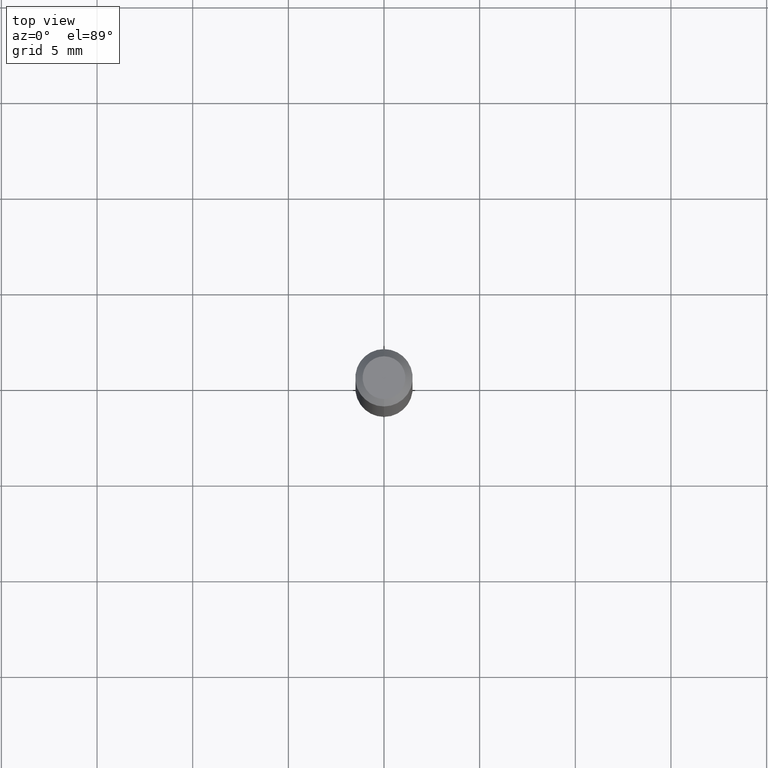
[diagram: clean part render]
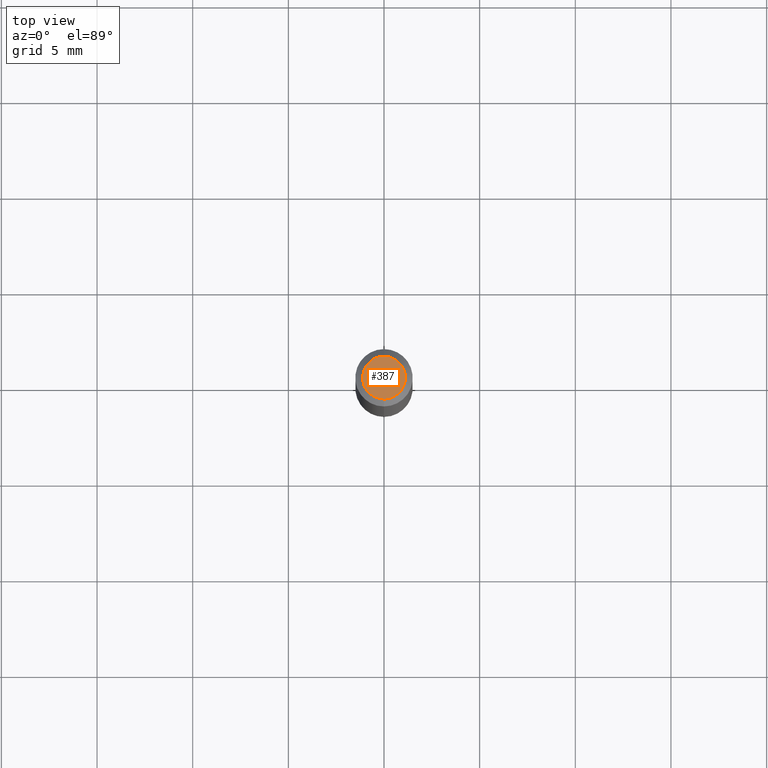
[diagram: same view with one face highlighted and labeled with its STEP entity id]
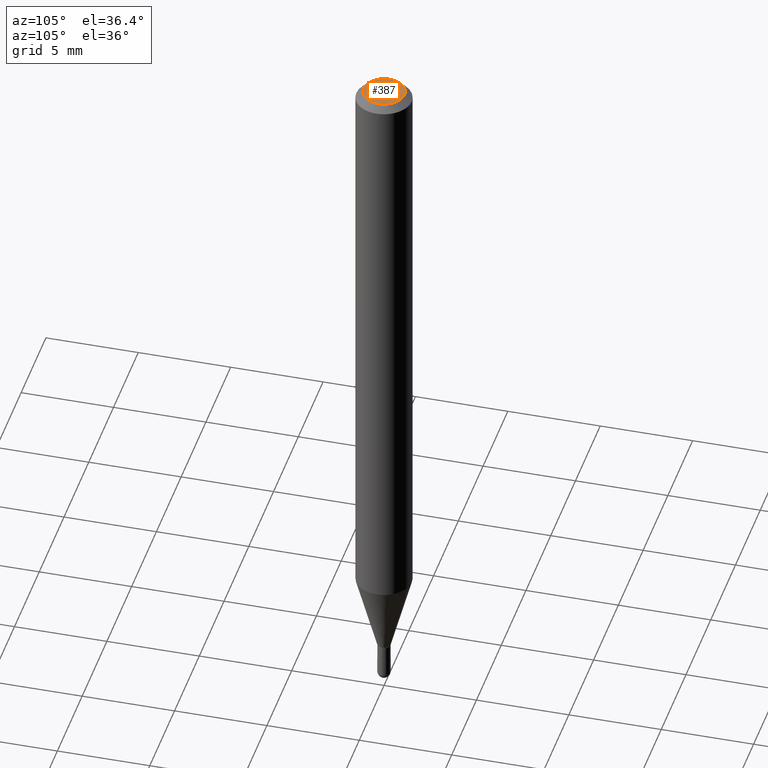
[diagram: same view with one face highlighted and labeled with its STEP entity id]
A machine part, top view. The second image highlights one B-rep face of the part: STEP entity #387.
A second angle (auxiliary view) of the same face is appended — the face is thin or edge-on in the first view.
In plain terms, the highlighted planar face has unit normal (0, -0, -1).
Its self-contained STEP definition (entity closure, byte-faithful):
#16 = CARTESIAN_POINT ( 'NONE',  ( 1.968650324445262626E-45, -2.810715645155272139E-31, -8.050202778374932957E-17 ) ) ;
#64 = CARTESIAN_POINT ( 'NONE',  ( 1.968650324445262626E-45, -2.810715645155272139E-31, -8.050202778374932957E-17 ) ) ;
#75 = VERTEX_POINT ( 'NONE', #115 ) ;
#76 = VERTEX_POINT ( 'NONE', #433 ) ;
#98 = EDGE_LOOP ( 'NONE', ( #313, #156 ) ) ;
#113 = CIRCLE ( 'NONE', #352, 0.04404999999999999888 ) ;
#115 = CARTESIAN_POINT ( 'NONE',  ( 3.599717260347271507E-16, 0.04404999999999999888, -2.343019103179918348E-16 ) ) ;
#156 = ORIENTED_EDGE ( 'NONE', *, *, #504, .T. ) ;
#178 = DIRECTION ( 'NONE',  ( 2.445466752382437471E-29, -3.491484280005505565E-15, -1.000000000000000000 ) ) ;
#289 = DIRECTION ( 'NONE',  ( -6.982962677686265133E-15, -1.000000000000000000, 3.491484280005504776E-15 ) ) ;
#291 = DIRECTION ( 'NONE',  ( -6.982962677686265133E-15, -1.000000000000000000, 3.491484280005504776E-15 ) ) ;
#311 = EDGE_CURVE ( 'NONE', #75, #76, #113, .T. ) ;
#313 = ORIENTED_EDGE ( 'NONE', *, *, #311, .T. ) ;
#336 = CARTESIAN_POINT ( 'NONE',  ( 3.075995059520799729E-16, 0.04404999999999999888, -1.940508964261171454E-16 ) ) ;
#341 = CIRCLE ( 'NONE', #460, 0.04404999999999999888 ) ;
#352 = AXIS2_PLACEMENT_3D ( 'NONE', #64, #382, #291 ) ;
#373 = PLANE ( 'NONE',  #413 ) ;
#382 = DIRECTION ( 'NONE',  ( -2.445466752382438032E-29, 3.491484280005505170E-15, 1.000000000000000000 ) ) ;
#387 = ADVANCED_FACE ( 'NONE', ( #498 ), #373, .F. ) ;
#413 = AXIS2_PLACEMENT_3D ( 'NONE', #336, #178, #418 ) ;
#418 = DIRECTION ( 'NONE',  ( 6.982962677686265922E-15, 1.000000000000000000, -3.491484280005505565E-15 ) ) ;
#433 = CARTESIAN_POINT ( 'NONE',  ( -3.536586717851222218E-16, -0.04404999999999999888, 7.329785475049316338E-17 ) ) ;
#460 = AXIS2_PLACEMENT_3D ( 'NONE', #16, #492, #289 ) ;
#492 = DIRECTION ( 'NONE',  ( -2.445466752382438032E-29, 3.491484280005505170E-15, 1.000000000000000000 ) ) ;
#498 = FACE_OUTER_BOUND ( 'NONE', #98, .T. ) ;
#504 = EDGE_CURVE ( 'NONE', #76, #75, #341, .T. ) ;